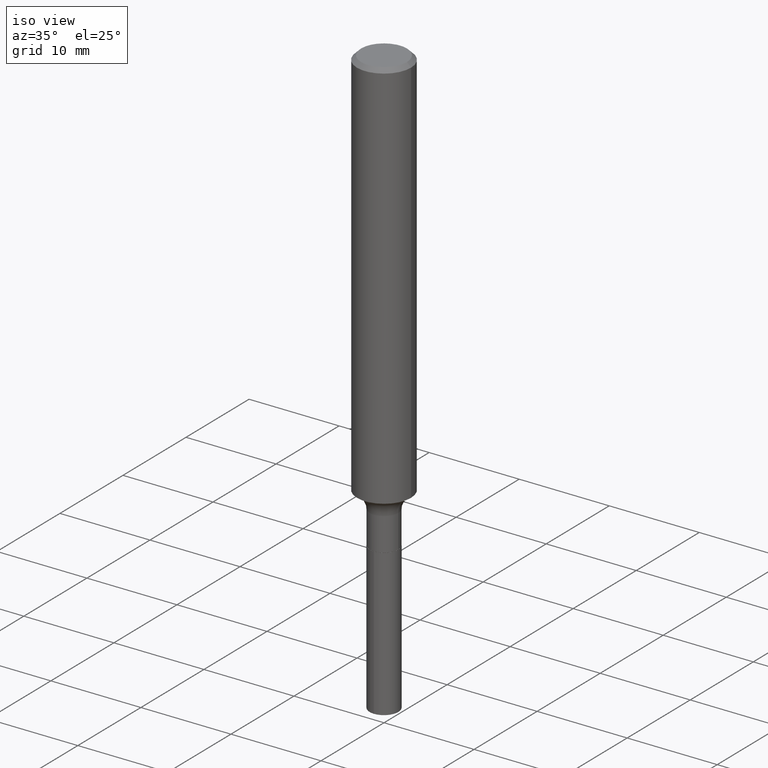
[diagram: clean part render]
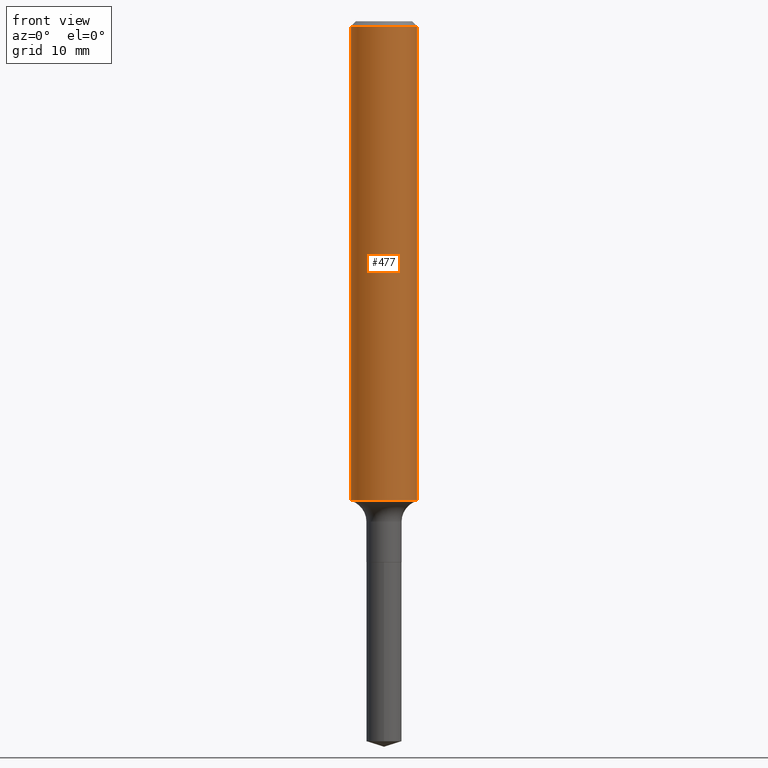
[diagram: tour spotlight — one face highlighted and labeled with its STEP entity id]
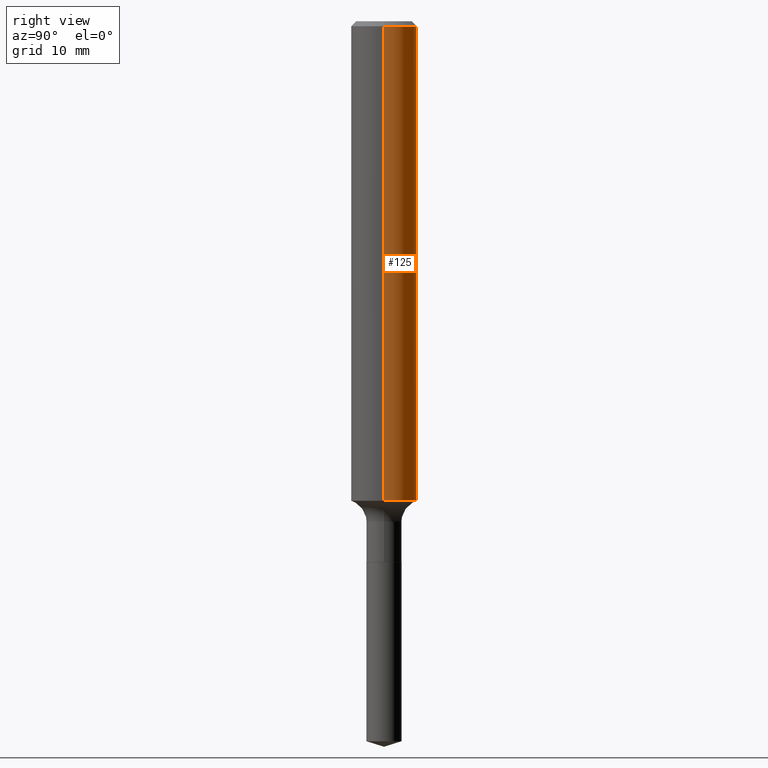
[diagram: tour spotlight — one face highlighted and labeled with its STEP entity id]
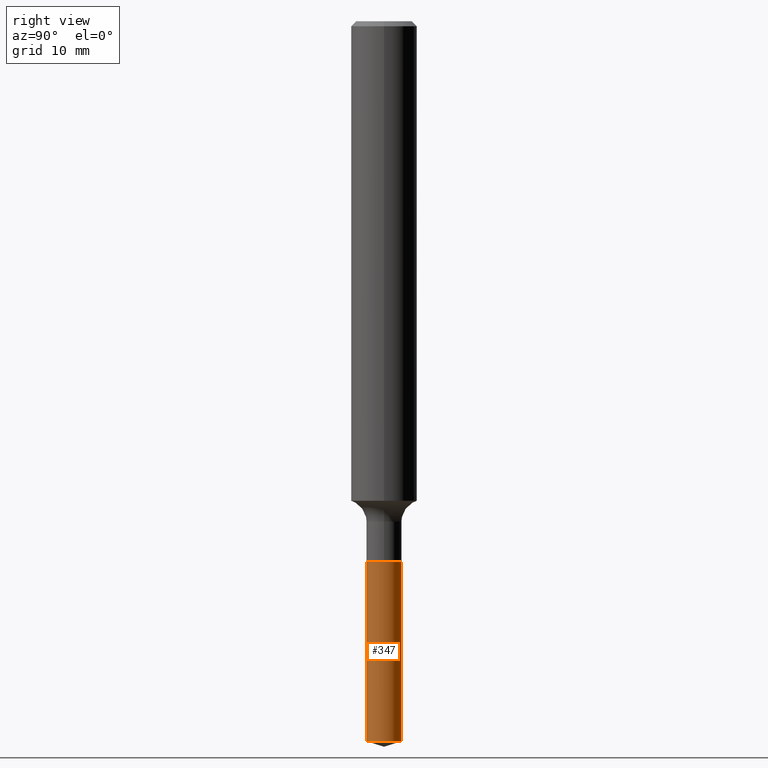
[diagram: tour spotlight — one face highlighted and labeled with its STEP entity id]
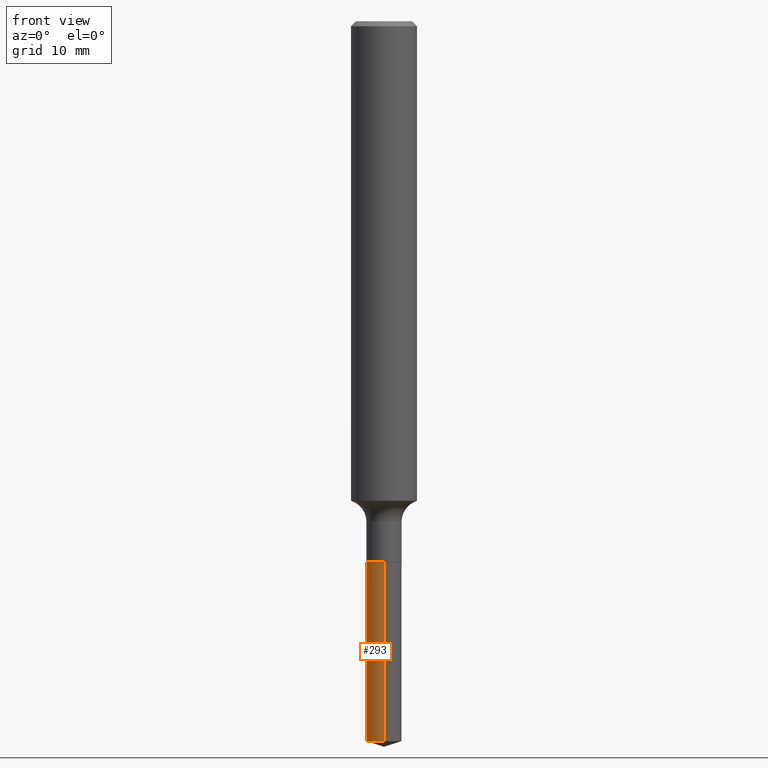
[diagram: tour spotlight — one face highlighted and labeled with its STEP entity id]
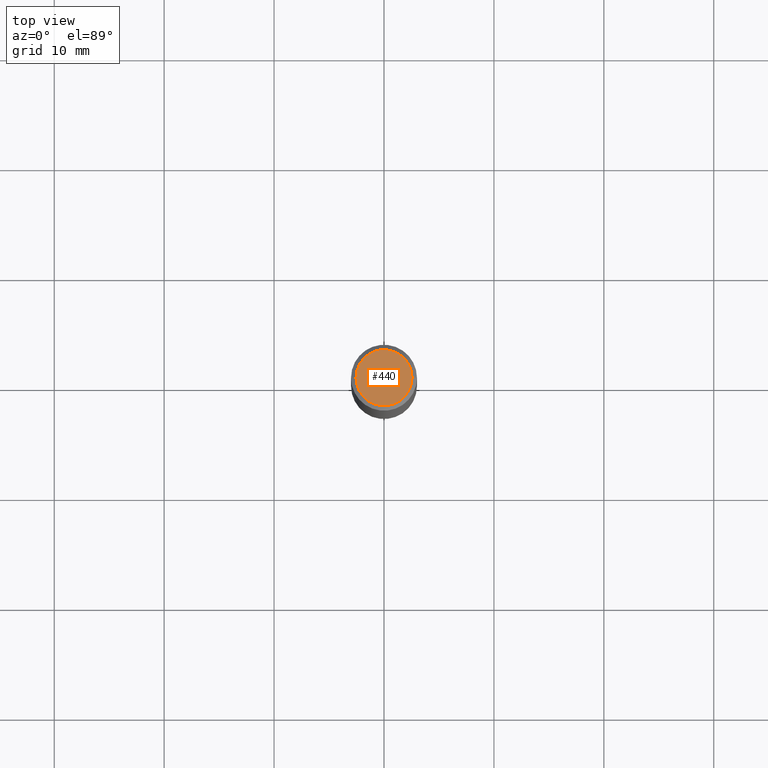
[diagram: tour spotlight — one face highlighted and labeled with its STEP entity id]
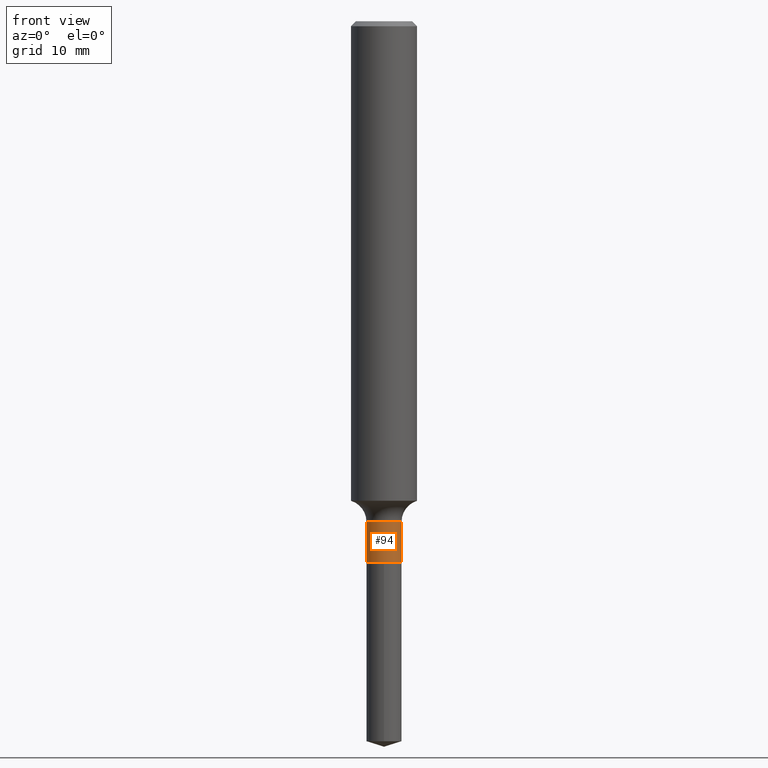
[diagram: tour spotlight — one face highlighted and labeled with its STEP entity id]
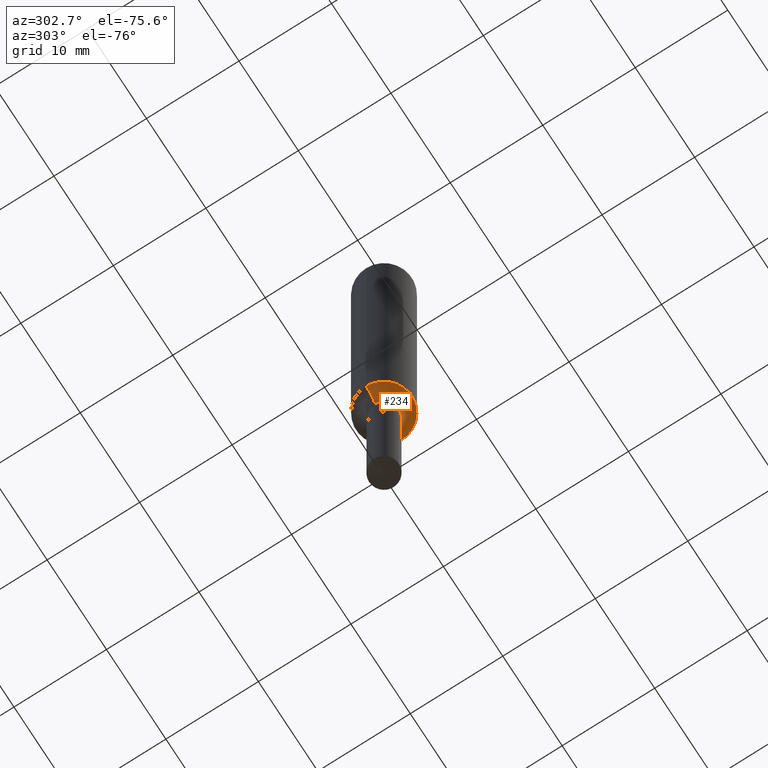
[diagram: tour spotlight — one face highlighted and labeled with its STEP entity id]
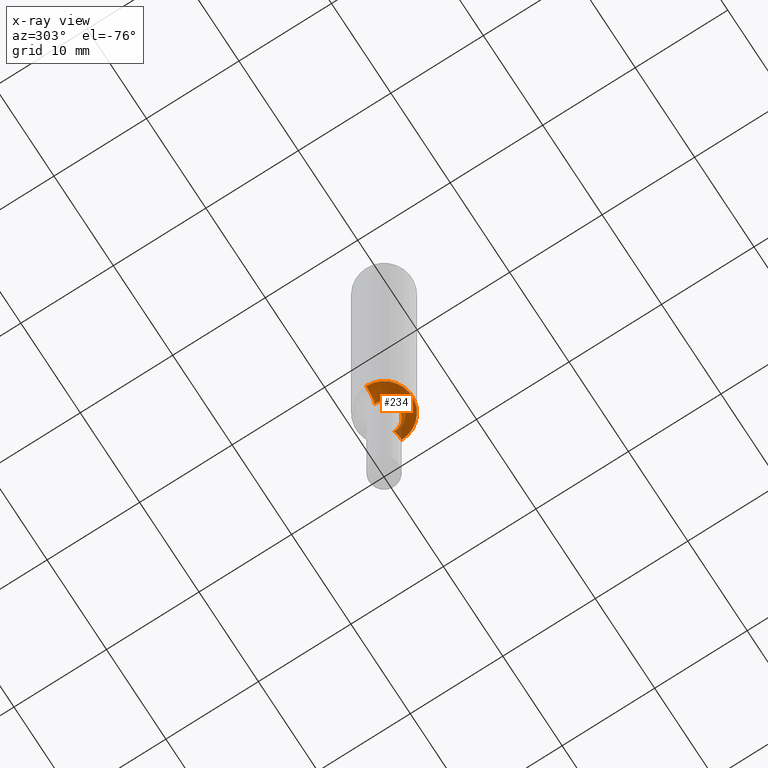
[diagram: x-ray of the same camera — body ghosted, this tour face saturated]
A machine part: a face-by-face anatomy tour. The part has 17 B-rep faces; the first image is the clean iso view, then the 7 largest visible faces are spotlighted one at a time (largest first), each with its STEP entity span.

Face 1 — front view, entity #477. In plain terms, the highlighted cylindrical surface (edge-blend (fillet) strip) has radius 2.9997 mm, axis along (-0, 0, 1).
Definition (entity closure, byte-faithful):
#4 = CIRCLE ( 'NONE', #429, 0.1181000000000001909 ) ;
#18 = VERTEX_POINT ( 'NONE', #404 ) ;
#26 = DIRECTION ( 'NONE',  ( -2.445468806185136597E-29, 3.491481338843145583E-15, 1.000000000000000000 ) ) ;
#36 = VERTEX_POINT ( 'NONE', #113 ) ;
#52 = CARTESIAN_POINT ( 'NONE',  ( -0.1181000000000001077, 8.391509709326790846E-16, -5.809262341591049389E-30 ) ) ;
#60 = AXIS2_PLACEMENT_3D ( 'NONE', #215, #26, #173 ) ;
#61 = CYLINDRICAL_SURFACE ( 'NONE', #70, 0.1181000000000001077 ) ;
#70 = AXIS2_PLACEMENT_3D ( 'NONE', #405, #439, #338 ) ;
#86 = CARTESIAN_POINT ( 'NONE',  ( -0.1180999999999999966, -2.190149613831435069E-15, -0.01771500000000010219 ) ) ;
#100 = VERTEX_POINT ( 'NONE', #86 ) ;
#113 = CARTESIAN_POINT ( 'NONE',  ( 0.1181000000000001354, -6.821437469845371752E-15, -1.717537341785582594 ) ) ;
#120 = VECTOR ( 'NONE', #389, 39.37007874015748143 ) ;
#127 = CARTESIAN_POINT ( 'NONE',  ( 0.1181000000000001077, -8.246878922347488542E-16, 5.758764772215005345E-30 ) ) ;
#173 = DIRECTION ( 'NONE',  ( 1.000000000000000000, -6.982962677686266711E-15, 0.000000000000000000 ) ) ;
#207 = EDGE_LOOP ( 'NONE', ( #310, #465, #380, #325 ) ) ;
#215 = CARTESIAN_POINT ( 'NONE',  ( 4.332147990156994116E-31, -6.185159191760667929E-17, -0.01771500000000010219 ) ) ;
#250 = EDGE_CURVE ( 'NONE', #36, #18, #428, .T. ) ;
#296 = DIRECTION ( 'NONE',  ( 1.000000000000000000, -6.982962677686269077E-15, 0.000000000000000000 ) ) ;
#297 = VERTEX_POINT ( 'NONE', #395 ) ;
#300 = VECTOR ( 'NONE', #390, 39.37007874015748143 ) ;
#305 = EDGE_CURVE ( 'NONE', #297, #100, #425, .T. ) ;
#310 = ORIENTED_EDGE ( 'NONE', *, *, #305, .F. ) ;
#325 = ORIENTED_EDGE ( 'NONE', *, *, #488, .F. ) ;
#335 = CARTESIAN_POINT ( 'NONE',  ( 4.200183992794781278E-29, -5.996749577610623490E-15, -1.717537341785582594 ) ) ;
#338 = DIRECTION ( 'NONE',  ( 1.000000000000000000, -6.982962677686266711E-15, 4.876176775795935793E-29 ) ) ;
#349 = EDGE_CURVE ( 'NONE', #297, #36, #4, .T. ) ;
#353 = CIRCLE ( 'NONE', #60, 0.1180999999999999966 ) ;
#373 = FACE_OUTER_BOUND ( 'NONE', #207, .T. ) ;
#380 = ORIENTED_EDGE ( 'NONE', *, *, #250, .T. ) ;
#389 = DIRECTION ( 'NONE',  ( -2.445468806185136877E-29, 3.491481338843145188E-15, 1.000000000000000000 ) ) ;
#390 = DIRECTION ( 'NONE',  ( -2.445468806185136877E-29, 3.491481338843145188E-15, 1.000000000000000000 ) ) ;
#395 = CARTESIAN_POINT ( 'NONE',  ( -0.1181000000000001354, -5.157598606677943715E-15, -1.717537341785582594 ) ) ;
#404 = CARTESIAN_POINT ( 'NONE',  ( 0.1180999999999999966, -8.865394841523547570E-16, -0.01771500000000010219 ) ) ;
#405 = CARTESIAN_POINT ( 'NONE',  ( 0.000000000000000000, 0.000000000000000000, 0.000000000000000000 ) ) ;
#425 = LINE ( 'NONE', #52, #120 ) ;
#428 = LINE ( 'NONE', #127, #300 ) ;
#429 = AXIS2_PLACEMENT_3D ( 'NONE', #335, #434, #296 ) ;
#434 = DIRECTION ( 'NONE',  ( -2.445468806185136597E-29, 3.491481338843145583E-15, 1.000000000000000000 ) ) ;
#439 = DIRECTION ( 'NONE',  ( -2.445468806185136597E-29, 3.491481338843145583E-15, 1.000000000000000000 ) ) ;
#465 = ORIENTED_EDGE ( 'NONE', *, *, #349, .T. ) ;
#477 = ADVANCED_FACE ( 'NONE', ( #373 ), #61, .T. ) ;
#488 = EDGE_CURVE ( 'NONE', #100, #18, #353, .T. ) ;

Face 2 — right view, entity #125. In plain terms, the highlighted cylindrical surface (edge-blend (fillet) strip) has radius 2.9997 mm, axis along (-0, 0, 1).
Definition (entity closure, byte-faithful):
#17 = DIRECTION ( 'NONE',  ( 1.000000000000000000, -6.982962677686266711E-15, 0.000000000000000000 ) ) ;
#18 = VERTEX_POINT ( 'NONE', #404 ) ;
#36 = VERTEX_POINT ( 'NONE', #113 ) ;
#52 = CARTESIAN_POINT ( 'NONE',  ( -0.1181000000000001077, 8.391509709326790846E-16, -5.809262341591049389E-30 ) ) ;
#53 = ORIENTED_EDGE ( 'NONE', *, *, #328, .F. ) ;
#69 = CIRCLE ( 'NONE', #150, 0.1180999999999999966 ) ;
#84 = DIRECTION ( 'NONE',  ( 1.000000000000000000, -6.982962677686266711E-15, 4.876176775795935793E-29 ) ) ;
#86 = CARTESIAN_POINT ( 'NONE',  ( -0.1180999999999999966, -2.190149613831435069E-15, -0.01771500000000010219 ) ) ;
#100 = VERTEX_POINT ( 'NONE', #86 ) ;
#101 = EDGE_CURVE ( 'NONE', #36, #297, #351, .T. ) ;
#113 = CARTESIAN_POINT ( 'NONE',  ( 0.1181000000000001354, -6.821437469845371752E-15, -1.717537341785582594 ) ) ;
#120 = VECTOR ( 'NONE', #389, 39.37007874015748143 ) ;
#125 = ADVANCED_FACE ( 'NONE', ( #191 ), #155, .T. ) ;
#127 = CARTESIAN_POINT ( 'NONE',  ( 0.1181000000000001077, -8.246878922347488542E-16, 5.758764772215005345E-30 ) ) ;
#138 = ORIENTED_EDGE ( 'NONE', *, *, #101, .T. ) ;
#150 = AXIS2_PLACEMENT_3D ( 'NONE', #209, #364, #17 ) ;
#153 = DIRECTION ( 'NONE',  ( -2.445468806185136597E-29, 3.491481338843145583E-15, 1.000000000000000000 ) ) ;
#155 = CYLINDRICAL_SURFACE ( 'NONE', #392, 0.1181000000000001077 ) ;
#191 = FACE_OUTER_BOUND ( 'NONE', #332, .T. ) ;
#209 = CARTESIAN_POINT ( 'NONE',  ( 4.332147990156994116E-31, -6.185159191760667929E-17, -0.01771500000000010219 ) ) ;
#250 = EDGE_CURVE ( 'NONE', #36, #18, #428, .T. ) ;
#297 = VERTEX_POINT ( 'NONE', #395 ) ;
#300 = VECTOR ( 'NONE', #390, 39.37007874015748143 ) ;
#305 = EDGE_CURVE ( 'NONE', #297, #100, #425, .T. ) ;
#328 = EDGE_CURVE ( 'NONE', #18, #100, #69, .T. ) ;
#332 = EDGE_LOOP ( 'NONE', ( #138, #391, #53, #363 ) ) ;
#348 = DIRECTION ( 'NONE',  ( 1.000000000000000000, -6.982962677686269077E-15, 0.000000000000000000 ) ) ;
#351 = CIRCLE ( 'NONE', #474, 0.1181000000000001909 ) ;
#363 = ORIENTED_EDGE ( 'NONE', *, *, #250, .F. ) ;
#364 = DIRECTION ( 'NONE',  ( -2.445468806185136597E-29, 3.491481338843145583E-15, 1.000000000000000000 ) ) ;
#389 = DIRECTION ( 'NONE',  ( -2.445468806185136877E-29, 3.491481338843145188E-15, 1.000000000000000000 ) ) ;
#390 = DIRECTION ( 'NONE',  ( -2.445468806185136877E-29, 3.491481338843145188E-15, 1.000000000000000000 ) ) ;
#391 = ORIENTED_EDGE ( 'NONE', *, *, #305, .T. ) ;
#392 = AXIS2_PLACEMENT_3D ( 'NONE', #453, #418, #84 ) ;
#395 = CARTESIAN_POINT ( 'NONE',  ( -0.1181000000000001354, -5.157598606677943715E-15, -1.717537341785582594 ) ) ;
#404 = CARTESIAN_POINT ( 'NONE',  ( 0.1180999999999999966, -8.865394841523547570E-16, -0.01771500000000010219 ) ) ;
#418 = DIRECTION ( 'NONE',  ( -2.445468806185136597E-29, 3.491481338843145583E-15, 1.000000000000000000 ) ) ;
#425 = LINE ( 'NONE', #52, #120 ) ;
#428 = LINE ( 'NONE', #127, #300 ) ;
#453 = CARTESIAN_POINT ( 'NONE',  ( 0.000000000000000000, 0.000000000000000000, 0.000000000000000000 ) ) ;
#474 = AXIS2_PLACEMENT_3D ( 'NONE', #489, #153, #348 ) ;
#489 = CARTESIAN_POINT ( 'NONE',  ( 4.200183992794781278E-29, -5.996749577610623490E-15, -1.717537341785582594 ) ) ;

Face 3 — right view, entity #347. In plain terms, the highlighted cylindrical surface (edge-blend (fillet) strip) has radius 1.6002 mm, axis along (-0, 0, 1).
Definition (entity closure, byte-faithful):
#6 = DIRECTION ( 'NONE',  ( -2.445450074066732039E-29, 3.491508164302866800E-15, 1.000000000000000000 ) ) ;
#23 = CYLINDRICAL_SURFACE ( 'NONE', #50, 0.06300000000000000044 ) ;
#24 = CARTESIAN_POINT ( 'NONE',  ( 4.736873077580609355E-29, -6.762999353339172249E-15, -1.936999999999999833 ) ) ;
#31 = DIRECTION ( 'NONE',  ( -2.445450074066732319E-29, 3.491508164302866800E-15, 1.000000000000000000 ) ) ;
#43 = CIRCLE ( 'NONE', #322, 0.06300000000000000044 ) ;
#50 = AXIS2_PLACEMENT_3D ( 'NONE', #256, #178, #220 ) ;
#82 = EDGE_CURVE ( 'NONE', #289, #343, #302, .T. ) ;
#88 = CARTESIAN_POINT ( 'NONE',  ( 4.476419235289261305E-16, 0.06299999999999097988, -2.578536176300623595 ) ) ;
#103 = CARTESIAN_POINT ( 'NONE',  ( 6.305717767431456764E-29, -9.002928150588443769E-15, -2.578536176300623595 ) ) ;
#106 = DIRECTION ( 'NONE',  ( -6.982962677686265922E-15, -1.000000000000000000, 0.000000000000000000 ) ) ;
#111 = ORIENTED_EDGE ( 'NONE', *, *, #357, .T. ) ;
#128 = ORIENTED_EDGE ( 'NONE', *, *, #82, .T. ) ;
#137 = CARTESIAN_POINT ( 'NONE',  ( -4.399266486941873942E-16, -0.06300000000000675893, -1.936999999999999611 ) ) ;
#142 = CARTESIAN_POINT ( 'NONE',  ( 4.476419235289264263E-16, 0.06299999999999324196, -1.937000000000000055 ) ) ;
#146 = VERTEX_POINT ( 'NONE', #436 ) ;
#178 = DIRECTION ( 'NONE',  ( -2.445450074066732319E-29, 3.491508164302866800E-15, 1.000000000000000000 ) ) ;
#189 = VERTEX_POINT ( 'NONE', #369 ) ;
#195 = CARTESIAN_POINT ( 'NONE',  ( 4.476419235289104519E-16, 0.06299999999999324196, -1.937000000000000055 ) ) ;
#201 = EDGE_CURVE ( 'NONE', #189, #343, #43, .T. ) ;
#220 = DIRECTION ( 'NONE',  ( -6.982962677686265922E-15, -1.000000000000000000, 4.336266656609941617E-15 ) ) ;
#238 = DIRECTION ( 'NONE',  ( -2.445450074066732039E-29, 3.491508164302866800E-15, 1.000000000000000000 ) ) ;
#256 = CARTESIAN_POINT ( 'NONE',  ( 4.736873077580609355E-29, -6.762999353339172249E-15, -1.936999999999999833 ) ) ;
#267 = CIRCLE ( 'NONE', #485, 0.06300000000000000044 ) ;
#278 = EDGE_CURVE ( 'NONE', #146, #189, #316, .T. ) ;
#280 = ORIENTED_EDGE ( 'NONE', *, *, #201, .F. ) ;
#289 = VERTEX_POINT ( 'NONE', #88 ) ;
#302 = LINE ( 'NONE', #195, #454 ) ;
#316 = LINE ( 'NONE', #137, #457 ) ;
#322 = AXIS2_PLACEMENT_3D ( 'NONE', #24, #334, #479 ) ;
#334 = DIRECTION ( 'NONE',  ( -2.445450074066732319E-29, 3.491508164302866800E-15, 1.000000000000000000 ) ) ;
#343 = VERTEX_POINT ( 'NONE', #142 ) ;
#347 = ADVANCED_FACE ( 'NONE', ( #375 ), #23, .T. ) ;
#357 = EDGE_CURVE ( 'NONE', #146, #289, #267, .T. ) ;
#369 = CARTESIAN_POINT ( 'NONE',  ( -4.399266486941873942E-16, -0.06300000000000675893, -1.936999999999999611 ) ) ;
#375 = FACE_OUTER_BOUND ( 'NONE', #431, .T. ) ;
#431 = EDGE_LOOP ( 'NONE', ( #111, #128, #280, #435 ) ) ;
#435 = ORIENTED_EDGE ( 'NONE', *, *, #278, .F. ) ;
#436 = CARTESIAN_POINT ( 'NONE',  ( -4.399266486941715677E-16, -0.06300000000000899325, -2.578536176300623595 ) ) ;
#454 = VECTOR ( 'NONE', #6, 39.37007874015748143 ) ;
#457 = VECTOR ( 'NONE', #238, 39.37007874015748143 ) ;
#479 = DIRECTION ( 'NONE',  ( -6.982962677686265922E-15, -1.000000000000000000, 4.336266656609941617E-15 ) ) ;
#485 = AXIS2_PLACEMENT_3D ( 'NONE', #103, #31, #106 ) ;

Face 4 — front view, entity #293. In plain terms, the highlighted cylindrical surface (edge-blend (fillet) strip) has radius 1.6002 mm, axis along (-0, 0, 1).
Definition (entity closure, byte-faithful):
#6 = DIRECTION ( 'NONE',  ( -2.445450074066732039E-29, 3.491508164302866800E-15, 1.000000000000000000 ) ) ;
#20 = ORIENTED_EDGE ( 'NONE', *, *, #278, .T. ) ;
#45 = FACE_OUTER_BOUND ( 'NONE', #241, .T. ) ;
#55 = CARTESIAN_POINT ( 'NONE',  ( 4.736873077580609355E-29, -6.762999353339172249E-15, -1.936999999999999833 ) ) ;
#67 = ORIENTED_EDGE ( 'NONE', *, *, #82, .F. ) ;
#77 = ORIENTED_EDGE ( 'NONE', *, *, #197, .T. ) ;
#79 = AXIS2_PLACEMENT_3D ( 'NONE', #55, #170, #460 ) ;
#82 = EDGE_CURVE ( 'NONE', #289, #343, #302, .T. ) ;
#88 = CARTESIAN_POINT ( 'NONE',  ( 4.476419235289261305E-16, 0.06299999999999097988, -2.578536176300623595 ) ) ;
#93 = CARTESIAN_POINT ( 'NONE',  ( 4.736873077580609355E-29, -6.762999353339172249E-15, -1.936999999999999833 ) ) ;
#104 = DIRECTION ( 'NONE',  ( -6.982962677686265922E-15, -1.000000000000000000, 0.000000000000000000 ) ) ;
#137 = CARTESIAN_POINT ( 'NONE',  ( -4.399266486941873942E-16, -0.06300000000000675893, -1.936999999999999611 ) ) ;
#142 = CARTESIAN_POINT ( 'NONE',  ( 4.476419235289264263E-16, 0.06299999999999324196, -1.937000000000000055 ) ) ;
#146 = VERTEX_POINT ( 'NONE', #436 ) ;
#170 = DIRECTION ( 'NONE',  ( -2.445450074066732319E-29, 3.491508164302866800E-15, 1.000000000000000000 ) ) ;
#175 = CARTESIAN_POINT ( 'NONE',  ( 6.305717767431456764E-29, -9.002928150588443769E-15, -2.578536176300623595 ) ) ;
#187 = AXIS2_PLACEMENT_3D ( 'NONE', #93, #279, #473 ) ;
#189 = VERTEX_POINT ( 'NONE', #369 ) ;
#195 = CARTESIAN_POINT ( 'NONE',  ( 4.476419235289104519E-16, 0.06299999999999324196, -1.937000000000000055 ) ) ;
#197 = EDGE_CURVE ( 'NONE', #289, #146, #409, .T. ) ;
#232 = CYLINDRICAL_SURFACE ( 'NONE', #79, 0.06300000000000000044 ) ;
#237 = AXIS2_PLACEMENT_3D ( 'NONE', #175, #330, #104 ) ;
#238 = DIRECTION ( 'NONE',  ( -2.445450074066732039E-29, 3.491508164302866800E-15, 1.000000000000000000 ) ) ;
#241 = EDGE_LOOP ( 'NONE', ( #67, #77, #20, #481 ) ) ;
#278 = EDGE_CURVE ( 'NONE', #146, #189, #316, .T. ) ;
#279 = DIRECTION ( 'NONE',  ( -2.445450074066732319E-29, 3.491508164302866800E-15, 1.000000000000000000 ) ) ;
#289 = VERTEX_POINT ( 'NONE', #88 ) ;
#293 = ADVANCED_FACE ( 'NONE', ( #45 ), #232, .T. ) ;
#302 = LINE ( 'NONE', #195, #454 ) ;
#316 = LINE ( 'NONE', #137, #457 ) ;
#330 = DIRECTION ( 'NONE',  ( -2.445450074066732319E-29, 3.491508164302866800E-15, 1.000000000000000000 ) ) ;
#336 = EDGE_CURVE ( 'NONE', #343, #189, #388, .T. ) ;
#343 = VERTEX_POINT ( 'NONE', #142 ) ;
#369 = CARTESIAN_POINT ( 'NONE',  ( -4.399266486941873942E-16, -0.06300000000000675893, -1.936999999999999611 ) ) ;
#388 = CIRCLE ( 'NONE', #187, 0.06300000000000000044 ) ;
#409 = CIRCLE ( 'NONE', #237, 0.06300000000000000044 ) ;
#436 = CARTESIAN_POINT ( 'NONE',  ( -4.399266486941715677E-16, -0.06300000000000899325, -2.578536176300623595 ) ) ;
#454 = VECTOR ( 'NONE', #6, 39.37007874015748143 ) ;
#457 = VECTOR ( 'NONE', #238, 39.37007874015748143 ) ;
#460 = DIRECTION ( 'NONE',  ( -6.982962677686265922E-15, -1.000000000000000000, 4.336266656609941617E-15 ) ) ;
#473 = DIRECTION ( 'NONE',  ( -6.982962677686265922E-15, -1.000000000000000000, 4.336266656609941617E-15 ) ) ;
#481 = ORIENTED_EDGE ( 'NONE', *, *, #336, .F. ) ;

Face 5 — top view, entity #440. In plain terms, the highlighted planar face has unit normal (0, -0, -1).
Definition (entity closure, byte-faithful):
#7 = DIRECTION ( 'NONE',  ( -2.445468806185136597E-29, 3.491481338843145583E-15, 1.000000000000000000 ) ) ;
#13 = CARTESIAN_POINT ( 'NONE',  ( 1.756471047675818066E-47, -2.507775143018572197E-33, -7.182553476999219361E-19 ) ) ;
#134 = DIRECTION ( 'NONE',  ( -2.445468806185136597E-29, 3.491481338843145583E-15, 1.000000000000000000 ) ) ;
#145 = CARTESIAN_POINT ( 'NONE',  ( 8.782355238379090331E-48, -1.253887571509286098E-33, -3.591276738499609681E-19 ) ) ;
#156 = CIRCLE ( 'NONE', #281, 0.1003850000000000020 ) ;
#167 = DIRECTION ( 'NONE',  ( 1.000000000000000000, -6.982962677686266711E-15, 4.876140833081945105E-29 ) ) ;
#176 = EDGE_LOOP ( 'NONE', ( #317, #396 ) ) ;
#205 = DIRECTION ( 'NONE',  ( 1.000000000000000000, -6.982962677686266711E-15, 4.876140833081945105E-29 ) ) ;
#251 = PLANE ( 'NONE',  #273 ) ;
#255 = VERTEX_POINT ( 'NONE', #430 ) ;
#273 = AXIS2_PLACEMENT_3D ( 'NONE', #145, #403, #407 ) ;
#281 = AXIS2_PLACEMENT_3D ( 'NONE', #320, #134, #205 ) ;
#283 = CARTESIAN_POINT ( 'NONE',  ( -0.1003850000000000020, 7.319105043583386689E-16, -7.182553477049322429E-19 ) ) ;
#311 = EDGE_CURVE ( 'NONE', #255, #319, #372, .T. ) ;
#315 = EDGE_CURVE ( 'NONE', #319, #255, #156, .T. ) ;
#317 = ORIENTED_EDGE ( 'NONE', *, *, #315, .T. ) ;
#319 = VERTEX_POINT ( 'NONE', #283 ) ;
#320 = CARTESIAN_POINT ( 'NONE',  ( 1.756471047675818066E-47, -2.507775143018572197E-33, -7.182553476999219361E-19 ) ) ;
#340 = FACE_OUTER_BOUND ( 'NONE', #176, .T. ) ;
#372 = CIRCLE ( 'NONE', #416, 0.1003850000000000020 ) ;
#396 = ORIENTED_EDGE ( 'NONE', *, *, #311, .T. ) ;
#403 = DIRECTION ( 'NONE',  ( 2.438088387897960049E-29, -3.491481338843145188E-15, -1.000000000000000000 ) ) ;
#407 = DIRECTION ( 'NONE',  ( -1.000000000000000000, 6.982962677686265922E-15, -4.876176775795935793E-29 ) ) ;
#416 = AXIS2_PLACEMENT_3D ( 'NONE', #13, #7, #167 ) ;
#430 = CARTESIAN_POINT ( 'NONE',  ( 0.1003850000000000020, -7.803837484803598359E-16, -7.182553476947422438E-19 ) ) ;
#440 = ADVANCED_FACE ( 'NONE', ( #340 ), #251, .F. ) ;

Face 6 — front view, entity #94. In plain terms, the highlighted cylindrical surface (edge-blend (fillet) strip) has radius 1.6002 mm, axis along (-0, 0, 1).
Definition (entity closure, byte-faithful):
#2 = DIRECTION ( 'NONE',  ( -2.445468806185136597E-29, 3.491481338843145583E-15, 1.000000000000000000 ) ) ;
#14 = ORIENTED_EDGE ( 'NONE', *, *, #208, .T. ) ;
#38 = CYLINDRICAL_SURFACE ( 'NONE', #377, 0.06300000000000000044 ) ;
#56 = EDGE_LOOP ( 'NONE', ( #337, #14, #174, #168 ) ) ;
#63 = DIRECTION ( 'NONE',  ( -2.445468806185136597E-29, 3.491481338843145583E-15, 1.000000000000000000 ) ) ;
#65 = VERTEX_POINT ( 'NONE', #159 ) ;
#83 = EDGE_CURVE ( 'NONE', #471, #210, #448, .T. ) ;
#94 = ADVANCED_FACE ( 'NONE', ( #188 ), #38, .T. ) ;
#98 = DIRECTION ( 'NONE',  ( 1.000000000000000000, -6.982962677686269077E-15, 0.000000000000000000 ) ) ;
#121 = DIRECTION ( 'NONE',  ( 1.000000000000000000, -6.982962677686265922E-15, 4.876176775795936353E-29 ) ) ;
#143 = EDGE_CURVE ( 'NONE', #486, #210, #313, .T. ) ;
#144 = CARTESIAN_POINT ( 'NONE',  ( 4.735650343177517114E-29, -6.761253612669751535E-15, -1.936499999999999888 ) ) ;
#159 = CARTESIAN_POINT ( 'NONE',  ( -0.06300000000000001432, -6.061526736476412649E-15, -1.936499999999999888 ) ) ;
#162 = AXIS2_PLACEMENT_3D ( 'NONE', #144, #298, #98 ) ;
#168 = ORIENTED_EDGE ( 'NONE', *, *, #143, .F. ) ;
#169 = VECTOR ( 'NONE', #262, 39.37007874015748143 ) ;
#174 = ORIENTED_EDGE ( 'NONE', *, *, #83, .T. ) ;
#180 = CARTESIAN_POINT ( 'NONE',  ( 0.06300000000000001432, -7.201180261363987000E-15, -1.936499999999999888 ) ) ;
#188 = FACE_OUTER_BOUND ( 'NONE', #56, .T. ) ;
#208 = EDGE_CURVE ( 'NONE', #65, #471, #475, .T. ) ;
#210 = VERTEX_POINT ( 'NONE', #242 ) ;
#242 = CARTESIAN_POINT ( 'NONE',  ( 0.06299999999999998657, -6.697010356035035470E-15, -1.792099999999999804 ) ) ;
#247 = CARTESIAN_POINT ( 'NONE',  ( 4.382524647564382413E-29, -6.257083707340800005E-15, -1.792099999999999804 ) ) ;
#260 = DIRECTION ( 'NONE',  ( -2.445468806185136877E-29, 3.491481338843145188E-15, 1.000000000000000000 ) ) ;
#262 = DIRECTION ( 'NONE',  ( -2.445468806185136877E-29, 3.491481338843145188E-15, 1.000000000000000000 ) ) ;
#282 = VECTOR ( 'NONE', #260, 39.37007874015748143 ) ;
#287 = LINE ( 'NONE', #331, #282 ) ;
#298 = DIRECTION ( 'NONE',  ( -2.445468806185136597E-29, 3.491481338843145583E-15, 1.000000000000000000 ) ) ;
#313 = CIRCLE ( 'NONE', #342, 0.06299999999999998657 ) ;
#331 = CARTESIAN_POINT ( 'NONE',  ( -0.06300000000000000044, 4.476419235288631203E-16, -3.098929106860590654E-30 ) ) ;
#337 = ORIENTED_EDGE ( 'NONE', *, *, #447, .F. ) ;
#342 = AXIS2_PLACEMENT_3D ( 'NONE', #247, #63, #433 ) ;
#345 = CARTESIAN_POINT ( 'NONE',  ( 0.000000000000000000, 0.000000000000000000, 0.000000000000000000 ) ) ;
#368 = CARTESIAN_POINT ( 'NONE',  ( -0.06299999999999998657, -6.061526736476412649E-15, -1.792099999999999804 ) ) ;
#377 = AXIS2_PLACEMENT_3D ( 'NONE', #345, #2, #121 ) ;
#382 = CARTESIAN_POINT ( 'NONE',  ( 0.06300000000000000044, -4.399266486942347752E-16, 3.071991368751439774E-30 ) ) ;
#433 = DIRECTION ( 'NONE',  ( 1.000000000000000000, -6.982962677686272233E-15, 0.000000000000000000 ) ) ;
#447 = EDGE_CURVE ( 'NONE', #65, #486, #287, .T. ) ;
#448 = LINE ( 'NONE', #382, #169 ) ;
#471 = VERTEX_POINT ( 'NONE', #180 ) ;
#475 = CIRCLE ( 'NONE', #162, 0.06300000000000001432 ) ;
#486 = VERTEX_POINT ( 'NONE', #368 ) ;

Face 7 — auxiliary view, entity #234. An x-ray twin of the same camera follows (body ghosted, this face saturated) — the face is partly hidden behind the body. In plain terms, the highlighted toroidal blend (fillet) surface has major radius 3.5814 mm and minor (blend) radius 1.9812 mm.
Definition (entity closure, byte-faithful):
#3 = TOROIDAL_SURFACE ( 'NONE', #443, 0.1409999999999999865, 0.07799999999999995826 ) ;
#4 = CIRCLE ( 'NONE', #429, 0.1181000000000001909 ) ;
#36 = VERTEX_POINT ( 'NONE', #113 ) ;
#48 = CIRCLE ( 'NONE', #257, 0.07799999999999995826 ) ;
#63 = DIRECTION ( 'NONE',  ( -2.445468806185136597E-29, 3.491481338843145583E-15, 1.000000000000000000 ) ) ;
#68 = DIRECTION ( 'NONE',  ( -6.982962677686266711E-15, -1.000000000000000000, 3.491481338843145583E-15 ) ) ;
#113 = CARTESIAN_POINT ( 'NONE',  ( 0.1181000000000001354, -6.821437469845371752E-15, -1.717537341785582594 ) ) ;
#143 = EDGE_CURVE ( 'NONE', #486, #210, #313, .T. ) ;
#172 = CARTESIAN_POINT ( 'NONE',  ( 4.382524647564382413E-29, -6.257083707340800005E-15, -1.792099999999999804 ) ) ;
#185 = EDGE_CURVE ( 'NONE', #297, #486, #48, .T. ) ;
#200 = ORIENTED_EDGE ( 'NONE', *, *, #185, .T. ) ;
#210 = VERTEX_POINT ( 'NONE', #242 ) ;
#211 = FACE_OUTER_BOUND ( 'NONE', #324, .T. ) ;
#234 = ADVANCED_FACE ( 'NONE', ( #211 ), #3, .F. ) ;
#242 = CARTESIAN_POINT ( 'NONE',  ( 0.06299999999999998657, -6.697010356035035470E-15, -1.792099999999999804 ) ) ;
#247 = CARTESIAN_POINT ( 'NONE',  ( 4.382524647564382413E-29, -6.257083707340800005E-15, -1.792099999999999804 ) ) ;
#249 = DIRECTION ( 'NONE',  ( 7.105427357601001859E-15, 1.000000000000000000, -3.491481338843145583E-15 ) ) ;
#257 = AXIS2_PLACEMENT_3D ( 'NONE', #472, #249, #402 ) ;
#275 = DIRECTION ( 'NONE',  ( 1.000000000000000000, -6.982962677686268288E-15, 4.883557194083113462E-29 ) ) ;
#277 = DIRECTION ( 'NONE',  ( -2.445468806185136597E-29, 3.491481338843145583E-15, 1.000000000000000000 ) ) ;
#296 = DIRECTION ( 'NONE',  ( 1.000000000000000000, -6.982962677686269077E-15, 0.000000000000000000 ) ) ;
#297 = VERTEX_POINT ( 'NONE', #395 ) ;
#313 = CIRCLE ( 'NONE', #342, 0.06299999999999998657 ) ;
#324 = EDGE_LOOP ( 'NONE', ( #441, #200, #356, #411 ) ) ;
#335 = CARTESIAN_POINT ( 'NONE',  ( 4.200183992794781278E-29, -5.996749577610623490E-15, -1.717537341785582594 ) ) ;
#342 = AXIS2_PLACEMENT_3D ( 'NONE', #247, #63, #433 ) ;
#349 = EDGE_CURVE ( 'NONE', #297, #36, #4, .T. ) ;
#356 = ORIENTED_EDGE ( 'NONE', *, *, #143, .T. ) ;
#360 = AXIS2_PLACEMENT_3D ( 'NONE', #480, #68, #470 ) ;
#365 = EDGE_CURVE ( 'NONE', #36, #210, #476, .T. ) ;
#368 = CARTESIAN_POINT ( 'NONE',  ( -0.06299999999999998657, -6.061526736476412649E-15, -1.792099999999999804 ) ) ;
#395 = CARTESIAN_POINT ( 'NONE',  ( -0.1181000000000001354, -5.157598606677943715E-15, -1.717537341785582594 ) ) ;
#402 = DIRECTION ( 'NONE',  ( -1.000000000000000000, 7.105427357601001859E-15, 0.000000000000000000 ) ) ;
#411 = ORIENTED_EDGE ( 'NONE', *, *, #365, .F. ) ;
#429 = AXIS2_PLACEMENT_3D ( 'NONE', #335, #434, #296 ) ;
#433 = DIRECTION ( 'NONE',  ( 1.000000000000000000, -6.982962677686272233E-15, 0.000000000000000000 ) ) ;
#434 = DIRECTION ( 'NONE',  ( -2.445468806185136597E-29, 3.491481338843145583E-15, 1.000000000000000000 ) ) ;
#441 = ORIENTED_EDGE ( 'NONE', *, *, #349, .F. ) ;
#443 = AXIS2_PLACEMENT_3D ( 'NONE', #172, #277, #275 ) ;
#470 = DIRECTION ( 'NONE',  ( 1.000000000000000000, -6.982962677686261977E-15, 0.000000000000000000 ) ) ;
#472 = CARTESIAN_POINT ( 'NONE',  ( -0.1409999999999999865, -5.255218449919059430E-15, -1.792099999999999804 ) ) ;
#476 = CIRCLE ( 'NONE', #360, 0.07799999999999995826 ) ;
#480 = CARTESIAN_POINT ( 'NONE',  ( 0.1409999999999999865, -7.241681444894562727E-15, -1.792099999999999804 ) ) ;
#486 = VERTEX_POINT ( 'NONE', #368 ) ;